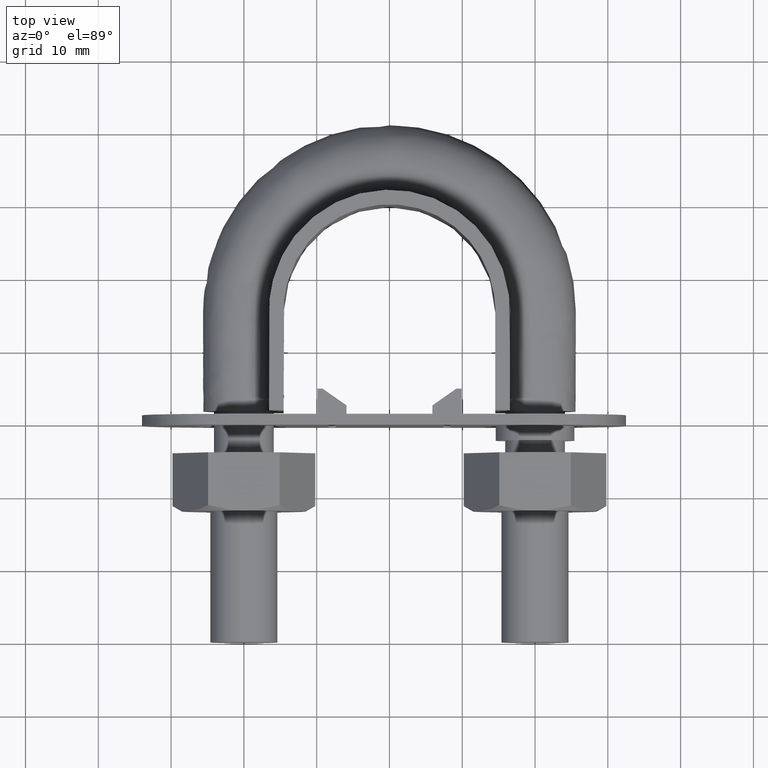
[diagram: clean part render]
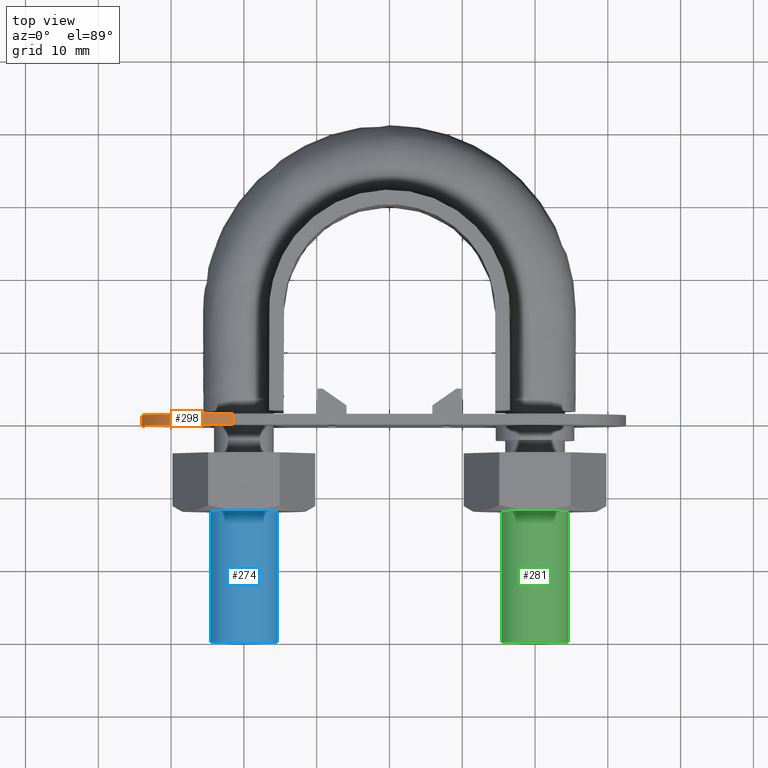
[diagram: same view with three faces highlighted in distinct colors, each labeled with its STEP entity id]
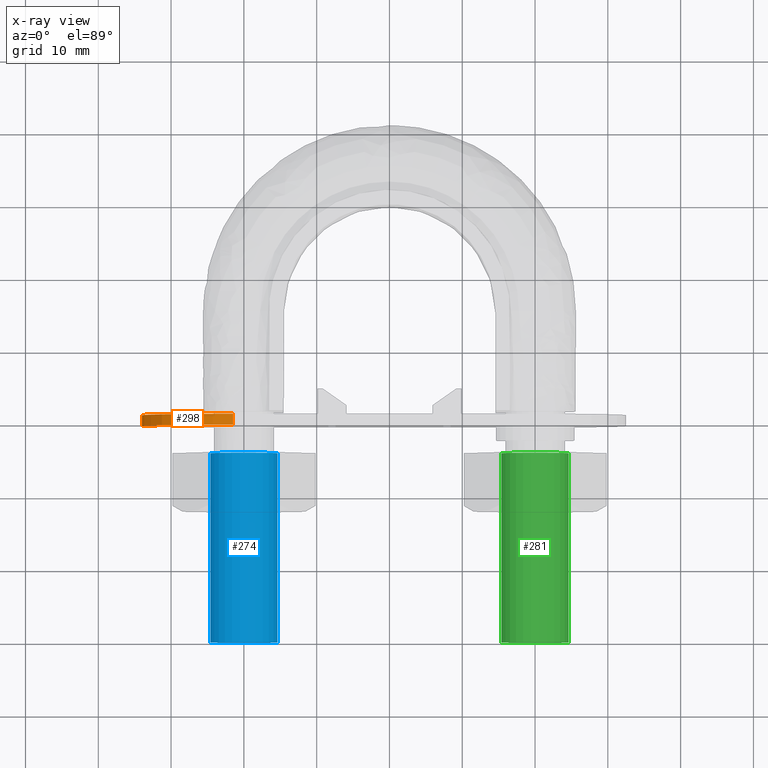
[diagram: x-ray of the same camera — body ghosted, the three highlighted faces saturated]
A machine part, top view with three faces highlighted in distinct colors.
The next image is the same camera in x-ray (body ghosted, the three faces saturated) — at least one of them is partly hidden behind the body in this view.
Their STEP definitions:

[orange] entity #298 — the highlighted cylindrical surface (partial cylindrical patch) has radius 12.5 mm, axis along (0, -1, -0).
#298 = ADVANCED_FACE( '', ( #457 ), #458, .T. );
#457 = FACE_OUTER_BOUND( '', #1528, .T. );
#458 = CYLINDRICAL_SURFACE( '', #1529, 12.5000000000000 );
#1528 = EDGE_LOOP( '', ( #1922, #1923, #1924, #1925 ) );
#1529 = AXIS2_PLACEMENT_3D( '', #1926, #1927, #1928 );
#1922 = ORIENTED_EDGE( '', *, *, #2600, .F. );
#1923 = ORIENTED_EDGE( '', *, *, #2601, .F. );
#1924 = ORIENTED_EDGE( '', *, *, #2585, .T. );
#1925 = ORIENTED_EDGE( '', *, *, #2602, .T. );
#1926 = CARTESIAN_POINT( '', ( -21.5000000000070, 29.7199999999800, 2.00484648756024E-007 ) );
#1927 = DIRECTION( '', ( 9.38505765720277E-013, -1.00000000000000, -8.50274527685322E-013 ) );
#1928 = DIRECTION( '', ( 9.32517985052728E-009, -8.50274518933587E-013, 1.00000000000000 ) );
#2585 = EDGE_CURVE( '', #2859, #2860, #2861, .T. );
#2600 = EDGE_CURVE( '', #2889, #2890, #2891, .T. );
#2601 = EDGE_CURVE( '', #2859, #2889, #2892, .T. );
#2602 = EDGE_CURVE( '', #2860, #2890, #2893, .T. );
#2859 = VERTEX_POINT( '', #3447 );
#2860 = VERTEX_POINT( '', #3448 );
#2861 = CIRCLE( '', #3449, 12.5000000000000 );
#2889 = VERTEX_POINT( '', #3485 );
#2890 = VERTEX_POINT( '', #3486 );
#2891 = CIRCLE( '', #3487, 12.5000000000000 );
#2892 = LINE( '', #3488, #3489 );
#2893 = LINE( '', #3490, #3491 );
#3447 = CARTESIAN_POINT( '', ( -34.0000000000070, 29.7199999999683, 3.17049396887615E-007 ) );
#3448 = CARTESIAN_POINT( '', ( -21.4999998834422, 29.7199999999694, 12.5000002004846 ) );
#3449 = AXIS2_PLACEMENT_3D( '', #4069, #4070, #4071 );
#3485 = CARTESIAN_POINT( '', ( -34.0000000000084, 31.2199999999683, 3.17050672299407E-007 ) );
#3486 = CARTESIAN_POINT( '', ( -21.4999998834436, 31.2199999999694, 12.5000002004859 ) );
#3487 = AXIS2_PLACEMENT_3D( '', #4098, #4099, #4100 );
#3488 = CARTESIAN_POINT( '', ( -34.0000000000070, 29.7199999999683, 3.17049396887615E-007 ) );
#3489 = VECTOR( '', #4101, 1000.00000000000 );
#3490 = CARTESIAN_POINT( '', ( -21.4999998834422, 29.7199999999694, 12.5000002004846 ) );
#3491 = VECTOR( '', #4102, 1000.00000000000 );
#4069 = CARTESIAN_POINT( '', ( -21.5000000000070, 29.7199999999800, 2.00484648756024E-007 ) );
#4070 = DIRECTION( '', ( -9.38505765720277E-013, 1.00000000000000, 8.50274527685322E-013 ) );
#4071 = DIRECTION( '', ( -1.00000000000000, -9.38505773649240E-013, 9.32517971174940E-009 ) );
#4098 = CARTESIAN_POINT( '', ( -21.5000000000084, 31.2199999999800, 2.00485924167816E-007 ) );
#4099 = DIRECTION( '', ( -9.38505765720277E-013, 1.00000000000000, 8.50274527685322E-013 ) );
#4100 = DIRECTION( '', ( -1.00000000000000, -9.38505773649240E-013, 9.32517971174940E-009 ) );
#4101 = DIRECTION( '', ( -9.38505765720277E-013, 1.00000000000000, 8.50274527685322E-013 ) );
#4102 = DIRECTION( '', ( -9.38505765720277E-013, 1.00000000000000, 8.50274527685322E-013 ) );

[blue] entity #274 — the highlighted cylindrical surface (bore or boss wall) has radius 4.6 mm, axis along (0, 1, 0).
#274 = ADVANCED_FACE( '', ( #398, #399 ), #400, .T. );
#398 = FACE_OUTER_BOUND( '', #1310, .T. );
#399 = FACE_OUTER_BOUND( '', #1311, .T. );
#400 = CYLINDRICAL_SURFACE( '', #1312, 4.60000000000000 );
#1310 = EDGE_LOOP( '', ( #1766 ) );
#1311 = EDGE_LOOP( '', ( #1767 ) );
#1312 = AXIS2_PLACEMENT_3D( '', #1768, #1769, #1770 );
#1766 = ORIENTED_EDGE( '', *, *, #2547, .T. );
#1767 = ORIENTED_EDGE( '', *, *, #2548, .F. );
#1768 = CARTESIAN_POINT( '', ( -20.0000000000000, 26.0000000000000, 1.63056336011450E-015 ) );
#1769 = DIRECTION( '', ( 4.89842541528951E-016, 1.00000000000000, 6.12303176911189E-017 ) );
#1770 = DIRECTION( '', ( 1.00000000000000, -4.89842541528951E-016, -2.24949108273321E-032 ) );
#2547 = EDGE_CURVE( '', #2797, #2797, #2798, .T. );
#2548 = EDGE_CURVE( '', #2799, #2799, #2800, .T. );
#2797 = VERTEX_POINT( '', #3339 );
#2798 = CIRCLE( '', #3340, 4.60000000000000 );
#2799 = VERTEX_POINT( '', #3341 );
#2800 = CIRCLE( '', #3342, 4.60000000000000 );
#3339 = CARTESIAN_POINT( '', ( -15.4000000000000, 26.0000000000000, 1.63056336011450E-015 ) );
#3340 = AXIS2_PLACEMENT_3D( '', #4005, #4006, #4007 );
#3341 = CARTESIAN_POINT( '', ( -15.4000000000000, 7.54357513954585E-015, 3.85751001454052E-017 ) );
#3342 = AXIS2_PLACEMENT_3D( '', #4008, #4009, #4010 );
#4005 = CARTESIAN_POINT( '', ( -20.0000000000000, 26.0000000000000, 1.63056336011450E-015 ) );
#4006 = DIRECTION( '', ( -4.89842541528951E-016, -1.00000000000000, -6.12303176911189E-017 ) );
#4007 = DIRECTION( '', ( 1.00000000000000, -4.89842541528951E-016, -2.24949108273321E-032 ) );
#4008 = CARTESIAN_POINT( '', ( -20.0000000000000, 9.79685083057902E-015, 3.85751001454053E-017 ) );
#4009 = DIRECTION( '', ( -4.89842541528951E-016, -1.00000000000000, -6.12303176911189E-017 ) );
#4010 = DIRECTION( '', ( 1.00000000000000, -4.89842541528951E-016, -2.24949108273321E-032 ) );

[green] entity #281 — the highlighted cylindrical surface (bore or boss wall) has radius 4.6 mm, axis along (0, 1, 0).
#281 = ADVANCED_FACE( '', ( #415, #416 ), #417, .T. );
#415 = FACE_OUTER_BOUND( '', #1486, .T. );
#416 = FACE_OUTER_BOUND( '', #1487, .T. );
#417 = CYLINDRICAL_SURFACE( '', #1488, 4.60000000000000 );
#1486 = EDGE_LOOP( '', ( #1816 ) );
#1487 = EDGE_LOOP( '', ( #1817 ) );
#1488 = AXIS2_PLACEMENT_3D( '', #1818, #1819, #1820 );
#1816 = ORIENTED_EDGE( '', *, *, #2571, .T. );
#1817 = ORIENTED_EDGE( '', *, *, #2572, .F. );
#1818 = CARTESIAN_POINT( '', ( 20.0000000000000, 26.0000000000000, 1.63056336011449E-015 ) );
#1819 = DIRECTION( '', ( 4.89842541528951E-016, 1.00000000000000, 6.12303176911189E-017 ) );
#1820 = DIRECTION( '', ( 1.00000000000000, -4.89842541528951E-016, -2.24949108273321E-032 ) );
#2571 = EDGE_CURVE( '', #2838, #2838, #2839, .T. );
#2572 = EDGE_CURVE( '', #2840, #2840, #2841, .T. );
#2838 = VERTEX_POINT( '', #3422 );
#2839 = CIRCLE( '', #3423, 4.60000000000000 );
#2840 = VERTEX_POINT( '', #3424 );
#2841 = CIRCLE( '', #3425, 4.60000000000000 );
#3422 = CARTESIAN_POINT( '', ( 24.6000000000000, 26.0000000000000, 1.63056336011449E-015 ) );
#3423 = AXIS2_PLACEMENT_3D( '', #4035, #4036, #4037 );
#3424 = CARTESIAN_POINT( '', ( 24.6000000000000, -1.20501265216122E-014, 3.85751001454043E-017 ) );
#3425 = AXIS2_PLACEMENT_3D( '', #4038, #4039, #4040 );
#4035 = CARTESIAN_POINT( '', ( 20.0000000000000, 26.0000000000000, 1.63056336011449E-015 ) );
#4036 = DIRECTION( '', ( -4.89842541528951E-016, -1.00000000000000, -6.12303176911189E-017 ) );
#4037 = DIRECTION( '', ( 1.00000000000000, -4.89842541528951E-016, -2.24949108273321E-032 ) );
#4038 = CARTESIAN_POINT( '', ( 20.0000000000000, -9.79685083057902E-015, 3.85751001454044E-017 ) );
#4039 = DIRECTION( '', ( -4.89842541528951E-016, -1.00000000000000, -6.12303176911189E-017 ) );
#4040 = DIRECTION( '', ( 1.00000000000000, -4.89842541528951E-016, -2.24949108273321E-032 ) );